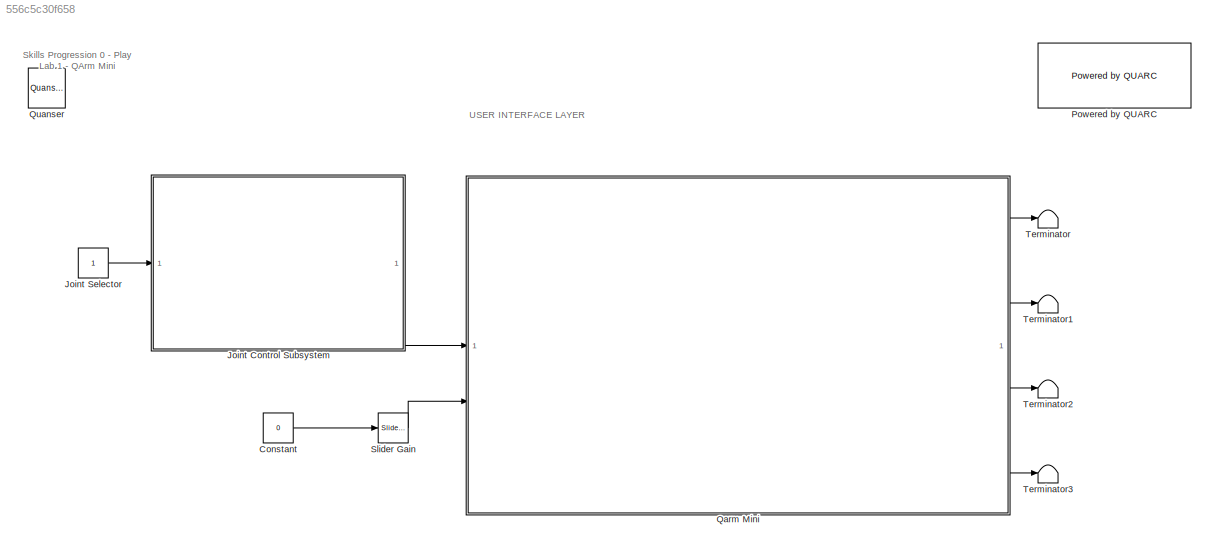
MODEL slx_556c5c30f658
KIND model
CONFIG AbsTol = auto
CONFIG EnableMultiTasking = on
CONFIG FixedStep = 1/10
CONFIG MaxStep = auto
CONFIG MinStep = auto
CONFIG RelTol = 1e-3
CONFIG SampleTimeConstraint = Unconstrained
CONFIG SolverName = ode1
CONFIG StartTime = 0.0
CONFIG StopTime = inf
BLOCK [Constant] Constant
  Value = 0
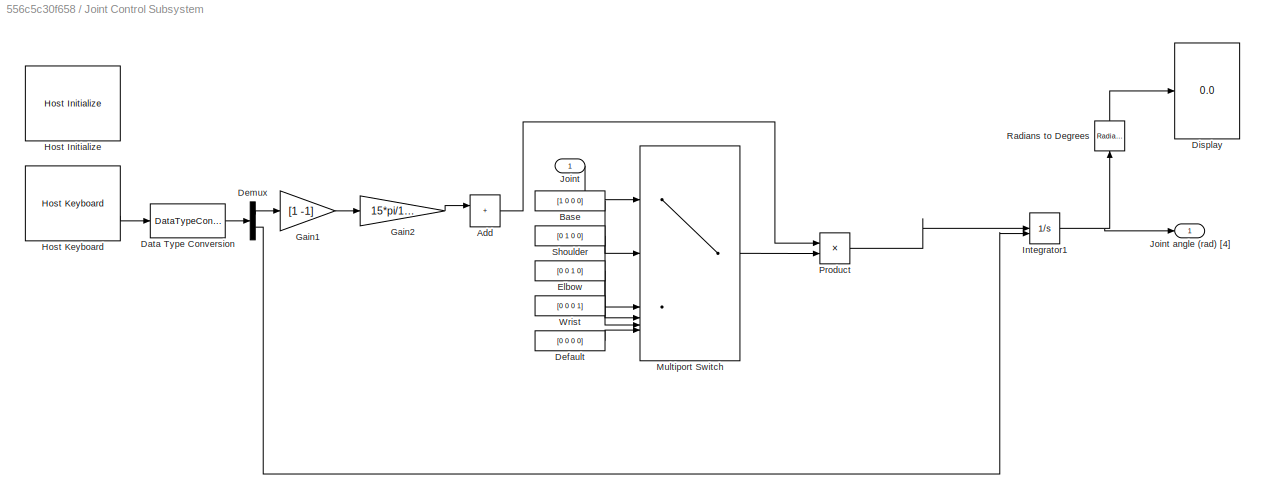
BLOCK [SubSystem] Joint Control Subsystem
BLOCK [Sum] Joint Control Subsystem/Add
  IconShape = rectangular
  Inputs = 1
  NameLocation = right
BLOCK [Constant] Joint Control Subsystem/Base
  Value = [1 0 0 0]
BLOCK [DataTypeConversion] Joint Control Subsystem/Data Type Conversion
  RndMeth = Floor
  SaturateOnIntegerOverflow = off
BLOCK [Constant] Joint Control Subsystem/Default
  Value = [0 0 0 0]
BLOCK [Demux] Joint Control Subsystem/Demux
  Outputs = 2
BLOCK [Display] Joint Control Subsystem/Display
  Decimation = 1
BLOCK [Constant] Joint Control Subsystem/Elbow
  Value = [0 0 1 0]
BLOCK [Gain] Joint Control Subsystem/Gain1
  Gain = [1 -1]
BLOCK [Gain] Joint Control Subsystem/Gain2
  Gain = 15*pi/180
BLOCK [Reference] Joint Control Subsystem/Host Initialize  REF=quarc_library/Devices/Peripherals/Host/Host Initialize
  SourceBlock = quarc_library/Devices/Peripherals/Host/Host Initialize
  SourceProductName = QUARC Targets
  SourceType = Host Initialize
BLOCK [Reference] Joint Control Subsystem/Host Keyboard  REF=quarc_library/Devices/Peripherals/Host/Host Keyboard
  SourceBlock = quarc_library/Devices/Peripherals/Host/Host Keyboard
  SourceProductName = QUARC Targets
  SourceType = Host Keyboard
BLOCK [Integrator] Joint Control Subsystem/Integrator1
  ExternalReset = rising
  LimitOutput = on
  LowerSaturationLimit = [-pi/2. -pi/2, -pi/4, -pi/2]
  UpperSaturationLimit = [5*pi/4, pi/2, pi/2, pi/4]
BLOCK [Inport] Joint Control Subsystem/Joint
BLOCK [Outport] Joint Control Subsystem/Joint angle (rad) [4]
BLOCK [MultiPortSwitch] Joint Control Subsystem/Multiport Switch
  DiagnosticForDefault = Warning
  InputSameDT = off
  Inputs = 5
  SaturateOnIntegerOverflow = off
BLOCK [Product] Joint Control Subsystem/Product
BLOCK [Reference] Joint Control Subsystem/Radians to Degrees  REF=simulink_extras/Transformations/Radians
to Degrees
  NameLocation = right
  SourceBlock = simulink_extras/Transformations/Radians\nto Degrees
  SourceType = RadiansToDegrees
BLOCK [Constant] Joint Control Subsystem/Shoulder
  Value = [0 1 0 0]
BLOCK [Constant] Joint Control Subsystem/Wrist
  Value = [0 0 0 1]
BLOCK [Constant] Joint Selector
BLOCK [Reference] Powered by QUARC  REF=quarc_library/Logos/Powered by QUARC
  SourceBlock = quarc_library/Logos/Powered by QUARC
  SourceProductName = QUARC Targets
  SourceType = Powered by QUARC
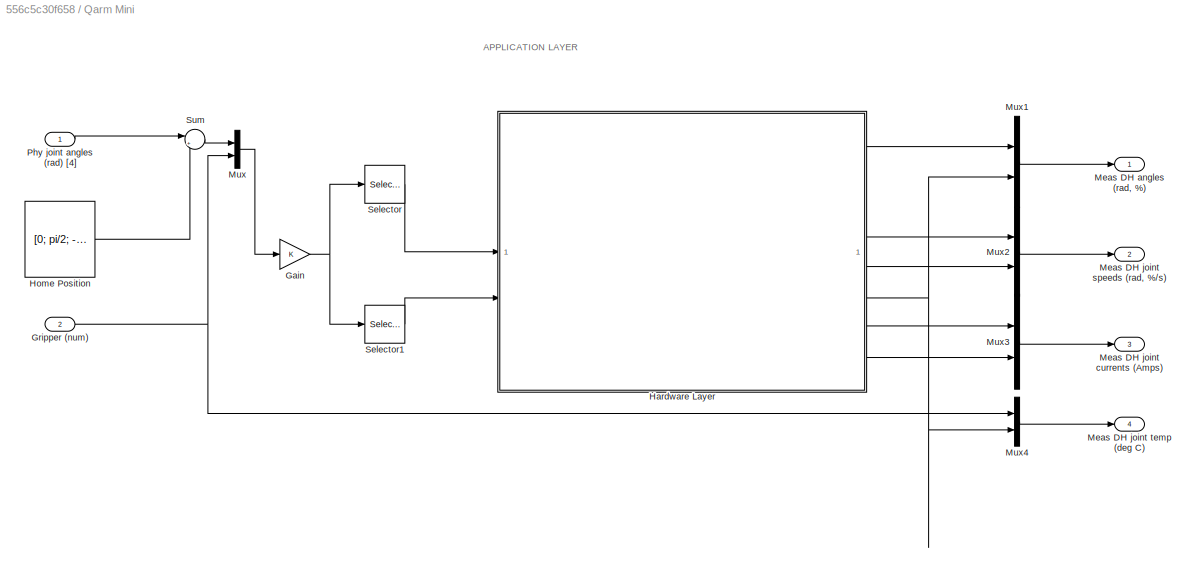
BLOCK [SubSystem] Qarm Mini
BLOCK [Gain] Qarm Mini/Gain
BLOCK [Inport] Qarm Mini/Gripper (num)
  Port = 2
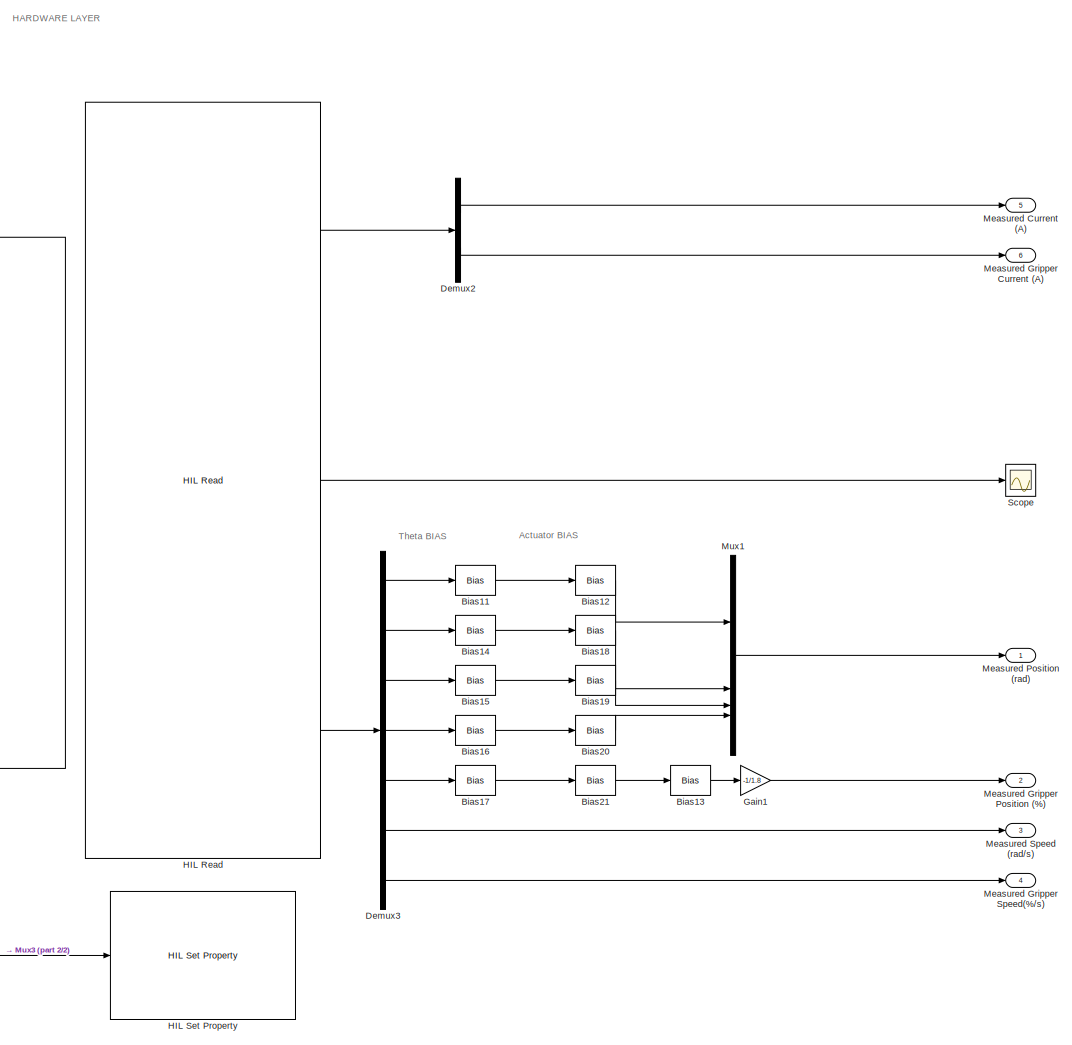
[diagram: Qarm Mini/Hardware Layer - part 1/2, right side, full height]
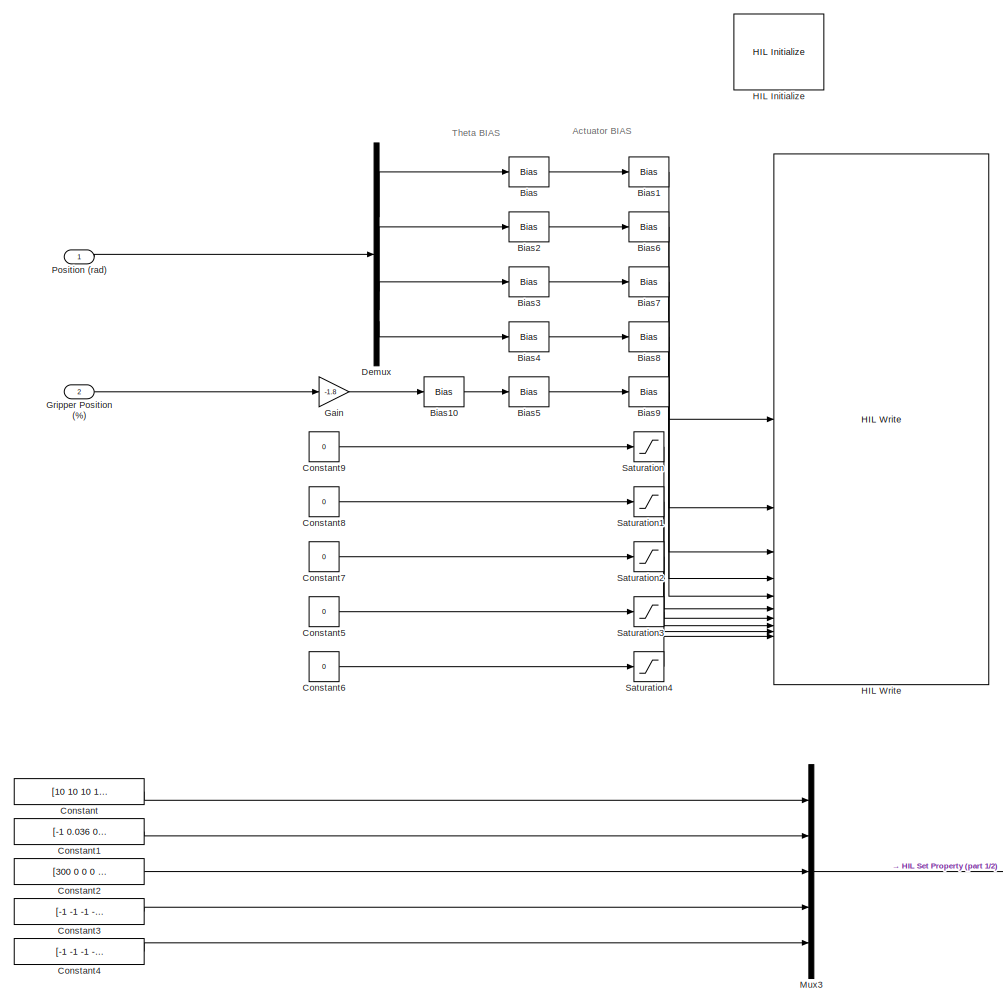
[diagram: Qarm Mini/Hardware Layer - part 2/2, left side, full height]
BLOCK [SubSystem] Qarm Mini/Hardware Layer
BLOCK [Bias] Qarm Mini/Hardware Layer/Bias
  SaturateOnIntegerOverflow = off
BLOCK [Bias] Qarm Mini/Hardware Layer/Bias1
  Bias = pi - ((67.5)*(pi/180)) - 0*((52.5)*(pi/180))
  SaturateOnIntegerOverflow = off
BLOCK [Bias] Qarm Mini/Hardware Layer/Bias10
  Bias = 0.9
  SaturateOnIntegerOverflow = off
BLOCK [Bias] Qarm Mini/Hardware Layer/Bias11
  SaturateOnIntegerOverflow = off
BLOCK [Bias] Qarm Mini/Hardware Layer/Bias12
  Bias = -(pi - ((67.5)*(pi/180)) - 0*((52.5)*(pi/180)))
  SaturateOnIntegerOverflow = off
BLOCK [Bias] Qarm Mini/Hardware Layer/Bias13
  Bias = -0.9
  SaturateOnIntegerOverflow = off
BLOCK [Bias] Qarm Mini/Hardware Layer/Bias14
  Bias = pi/2
  SaturateOnIntegerOverflow = off
BLOCK [Bias] Qarm Mini/Hardware Layer/Bias15
  Bias = -pi/2
  SaturateOnIntegerOverflow = off
BLOCK [Bias] Qarm Mini/Hardware Layer/Bias16
  Bias = pi/2
  SaturateOnIntegerOverflow = off
BLOCK [Bias] Qarm Mini/Hardware Layer/Bias17
  SaturateOnIntegerOverflow = off
BLOCK [Bias] Qarm Mini/Hardware Layer/Bias18
  Bias = -pi -  0.1834
  SaturateOnIntegerOverflow = off
BLOCK [Bias] Qarm Mini/Hardware Layer/Bias19
  Bias = -pi +  0.1834 - 0.07
  SaturateOnIntegerOverflow = off
BLOCK [Bias] Qarm Mini/Hardware Layer/Bias2
  Bias = -pi/2
  SaturateOnIntegerOverflow = off
BLOCK [Bias] Qarm Mini/Hardware Layer/Bias20
  Bias = -pi
  SaturateOnIntegerOverflow = off
BLOCK [Bias] Qarm Mini/Hardware Layer/Bias21
  Bias = -pi
  SaturateOnIntegerOverflow = off
BLOCK [Bias] Qarm Mini/Hardware Layer/Bias3
  Bias = pi/2
  SaturateOnIntegerOverflow = off
BLOCK [Bias] Qarm Mini/Hardware Layer/Bias4
  Bias = -pi/2
  SaturateOnIntegerOverflow = off
BLOCK [Bias] Qarm Mini/Hardware Layer/Bias5
  SaturateOnIntegerOverflow = off
BLOCK [Bias] Qarm Mini/Hardware Layer/Bias6
  Bias = pi + 0.1834
  SaturateOnIntegerOverflow = off
BLOCK [Bias] Qarm Mini/Hardware Layer/Bias7
  Bias = pi -  0.1834 + 0.07
  SaturateOnIntegerOverflow = off
BLOCK [Bias] Qarm Mini/Hardware Layer/Bias8
  Bias = pi
  SaturateOnIntegerOverflow = off
BLOCK [Bias] Qarm Mini/Hardware Layer/Bias9
  Bias = pi
  SaturateOnIntegerOverflow = off
BLOCK [Constant] Qarm Mini/Hardware Layer/Constant
  Value = [10 10 10 10 20]
BLOCK [Constant] Qarm Mini/Hardware Layer/Constant1
  Value = [-1 0.036 0.036 -1 -1]
BLOCK [Constant] Qarm Mini/Hardware Layer/Constant2
  Value = [300 0 0 0 0]
BLOCK [Constant] Qarm Mini/Hardware Layer/Constant3
  Value = [-1 -1 -1 -1 -1]
BLOCK [Constant] Qarm Mini/Hardware Layer/Constant4
  Value = [-1 -1 -1 -1 -1]
BLOCK [Constant] Qarm Mini/Hardware Layer/Constant5
  Value = 0
BLOCK [Constant] Qarm Mini/Hardware Layer/Constant6
  Value = 0
BLOCK [Constant] Qarm Mini/Hardware Layer/Constant7
  Value = 0
BLOCK [Constant] Qarm Mini/Hardware Layer/Constant8
  Value = 0
BLOCK [Constant] Qarm Mini/Hardware Layer/Constant9
  Value = 0
BLOCK [Demux] Qarm Mini/Hardware Layer/Demux
BLOCK [Demux] Qarm Mini/Hardware Layer/Demux2
  Outputs = [4 1]
BLOCK [Demux] Qarm Mini/Hardware Layer/Demux3
  Outputs = [1 1 1 1 1 4 1]
BLOCK [Gain] Qarm Mini/Hardware Layer/Gain
  Gain = -1.8
BLOCK [Gain] Qarm Mini/Hardware Layer/Gain1
  Gain = -1/1.8
BLOCK [Inport] Qarm Mini/Hardware Layer/Gripper Position (%)
  Port = 2
BLOCK [Reference] Qarm Mini/Hardware Layer/HIL Initialize  REF=quarc_library/Data Acquisition/Generic/Configuration/HIL Initialize
  AttributesFormatString = %<object_name> (%<board_type>-%<board_number>)
  SourceBlock = quarc_library/Data Acquisition/Generic/Configuration/HIL Initialize
  SourceProductName = QUARC Targets
  SourceType = HIL Initialize
  UserDataPersistent = on
BLOCK [Reference] Qarm Mini/Hardware Layer/HIL Read  REF=quarc_library/Data Acquisition/Generic/Immediate I//O/HIL Read
  AttributesFormatString = (%<object_name>)
  SourceBlock = quarc_library/Data Acquisition/Generic/Immediate I//O/HIL Read
  SourceProductName = QUARC Targets
  SourceType = HIL Read
  UserDataPersistent = on
BLOCK [Reference] Qarm Mini/Hardware Layer/HIL Set Property  REF=quarc_library/Data Acquisition/Generic/Configuration/HIL Set Property
  AttributesFormatString = (%<object_name>)
  SourceBlock = quarc_library/Data Acquisition/Generic/Configuration/HIL Set Property
  SourceProductName = QUARC Targets
  SourceType = HIL Set Property
  UserDataPersistent = on
BLOCK [Reference] Qarm Mini/Hardware Layer/HIL Write  REF=quarc_library/Data Acquisition/Generic/Immediate I//O/HIL Write
  AttributesFormatString = (%<object_name>)
  SourceBlock = quarc_library/Data Acquisition/Generic/Immediate I//O/HIL Write
  SourceProductName = QUARC Targets
  SourceType = HIL Write
  UserDataPersistent = on
BLOCK [Outport] Qarm Mini/Hardware Layer/Measured Current (A)
  Port = 5
BLOCK [Outport] Qarm Mini/Hardware Layer/Measured Gripper Current (A)
  Port = 6
BLOCK [Outport] Qarm Mini/Hardware Layer/Measured Gripper Position (%)
  Port = 2
BLOCK [Outport] Qarm Mini/Hardware Layer/Measured Gripper Speed(%//s)
  Port = 4
BLOCK [Outport] Qarm Mini/Hardware Layer/Measured Position (rad)
BLOCK [Outport] Qarm Mini/Hardware Layer/Measured Speed (rad//s)
  Port = 3
BLOCK [Mux] Qarm Mini/Hardware Layer/Mux1
  DisplayOption = bar
BLOCK [Mux] Qarm Mini/Hardware Layer/Mux3
  DisplayOption = bar
  Inputs = 5
BLOCK [Inport] Qarm Mini/Hardware Layer/Position (rad)
BLOCK [Saturate] Qarm Mini/Hardware Layer/Saturation
BLOCK [Saturate] Qarm Mini/Hardware Layer/Saturation1
BLOCK [Saturate] Qarm Mini/Hardware Layer/Saturation2
BLOCK [Saturate] Qarm Mini/Hardware Layer/Saturation3
BLOCK [Saturate] Qarm Mini/Hardware Layer/Saturation4
BLOCK [Scope] Qarm Mini/Hardware Layer/Scope
  Floating = off
  NumInputPorts = 1
  ScopeSpecificationString = Simulink.scopes.TimeScopeBlockCfg('CurrentConfiguration', extmgr.ConfigurationSet(extmgr.Configuration('Core','General UI',true),extmgr.Configuration('Core','Source UI',true),extmgr.Configuration('Sources','WiredSimulink',true),extmgr.Configuration('Visuals','Time Domain',true,'SerializedDisplays',{struct('MinYLimReal','-1.00000','MaxYLimReal','1.00000','YLabelReal','','MinYLimMag','0.00000','MaxY...<+1869ch>
BLOCK [Constant] Qarm Mini/Home Position
  Value = [0; pi/2; -pi/2; pi/2]
  VectorParams1D = off
BLOCK [Outport] Qarm Mini/Meas DH angles (rad, %)
BLOCK [Outport] Qarm Mini/Meas DH joint currents (Amps)
  Port = 3
BLOCK [Outport] Qarm Mini/Meas DH joint speeds (rad, %//s)
  Port = 2
BLOCK [Outport] Qarm Mini/Meas DH joint temp (deg C)
  Port = 4
BLOCK [Mux] Qarm Mini/Mux
  DisplayOption = bar
  Inputs = 2
BLOCK [Mux] Qarm Mini/Mux1
  DisplayOption = bar
  Inputs = 2
BLOCK [Mux] Qarm Mini/Mux2
  DisplayOption = bar
  Inputs = 2
BLOCK [Mux] Qarm Mini/Mux3
  DisplayOption = bar
  Inputs = 2
BLOCK [Mux] Qarm Mini/Mux4
  DisplayOption = bar
  Inputs = 2
BLOCK [Inport] Qarm Mini/Phy joint angles (rad) [4]
BLOCK [Selector] Qarm Mini/Selector
  IndexOptions = Index vector (dialog)
  Indices = 1:4
  InputPortWidth = 5
  OutputSizes = 1
BLOCK [Selector] Qarm Mini/Selector1
  IndexOptions = Index vector (dialog)
  Indices = 5
  InputPortWidth = 5
  OutputSizes = 1
BLOCK [Sum] Qarm Mini/Sum
  Inputs = |++
BLOCK [Reference] Quanser  REF=quarc_library/Logos/Quanser
  SourceBlock = quarc_library/Logos/Quanser
  SourceProductName = QUARC Targets
  SourceType = Powered by Quanser
BLOCK [Reference] Slider Gain  REF=simulink/Math
Operations/Slider
Gain
  NameLocation = right
  SourceBlock = simulink/Math\nOperations/Slider\nGain
  SourceType = Slider Gain
BLOCK [Terminator] Terminator
BLOCK [Terminator] Terminator1
BLOCK [Terminator] Terminator2
BLOCK [Terminator] Terminator3
ANNOTATION (root): Skills Progression 0 - Play Lab 1 - QArm Mini
ANNOTATION (root): USER INTERFACE LAYER
ANNOTATION Qarm Mini: APPLICATION LAYER
ANNOTATION Qarm Mini/Hardware Layer: Actuator BIAS
ANNOTATION Qarm Mini/Hardware Layer: HARDWARE LAYER
ANNOTATION Qarm Mini/Hardware Layer: Theta BIAS
LINE Constant:1 -> Slider Gain:1
LINE Joint Control Subsystem/Add:1 -> Joint Control Subsystem/Product:1
LINE Joint Control Subsystem/Base:1 -> Joint Control Subsystem/Multiport Switch:2
LINE Joint Control Subsystem/Data Type Conversion:1 -> Joint Control Subsystem/Demux:1
LINE Joint Control Subsystem/Default:1 -> Joint Control Subsystem/Multiport Switch:6
LINE Joint Control Subsystem/Demux:1 -> Joint Control Subsystem/Gain1:1
LINE Joint Control Subsystem/Demux:2 -> Joint Control Subsystem/Integrator1:2
LINE Joint Control Subsystem/Elbow:1 -> Joint Control Subsystem/Multiport Switch:4
LINE Joint Control Subsystem/Gain1:1 -> Joint Control Subsystem/Gain2:1
LINE Joint Control Subsystem/Gain2:1 -> Joint Control Subsystem/Add:1
LINE Joint Control Subsystem/Host Keyboard:2 -> Joint Control Subsystem/Data Type Conversion:1
NET Joint Control Subsystem/Integrator1:1 -> Joint Control Subsystem/Joint angle (rad) [4]:1, Joint Control Subsystem/Radians to Degrees:1
LINE Joint Control Subsystem/Joint:1 -> Joint Control Subsystem/Multiport Switch:1
LINE Joint Control Subsystem/Multiport Switch:1 -> Joint Control Subsystem/Product:2
LINE Joint Control Subsystem/Product:1 -> Joint Control Subsystem/Integrator1:1
LINE Joint Control Subsystem/Radians to Degrees:1 -> Joint Control Subsystem/Display:1
LINE Joint Control Subsystem/Shoulder:1 -> Joint Control Subsystem/Multiport Switch:3
LINE Joint Control Subsystem/Wrist:1 -> Joint Control Subsystem/Multiport Switch:5
LINE Joint Control Subsystem:1 -> Qarm Mini:1
LINE Joint Selector:1 -> Joint Control Subsystem:1
NET Qarm Mini/Gain:1 -> Qarm Mini/Selector1:1, Qarm Mini/Selector:1
NET Qarm Mini/Gripper (num):1 -> Qarm Mini/Mux4:1, Qarm Mini/Mux:2
LINE Qarm Mini/Hardware Layer/Bias10:1 -> Qarm Mini/Hardware Layer/Bias5:1
LINE Qarm Mini/Hardware Layer/Bias11:1 -> Qarm Mini/Hardware Layer/Bias12:1
LINE Qarm Mini/Hardware Layer/Bias12:1 -> Qarm Mini/Hardware Layer/Mux1:1
LINE Qarm Mini/Hardware Layer/Bias13:1 -> Qarm Mini/Hardware Layer/Gain1:1
LINE Qarm Mini/Hardware Layer/Bias14:1 -> Qarm Mini/Hardware Layer/Bias18:1
LINE Qarm Mini/Hardware Layer/Bias15:1 -> Qarm Mini/Hardware Layer/Bias19:1
LINE Qarm Mini/Hardware Layer/Bias16:1 -> Qarm Mini/Hardware Layer/Bias20:1
LINE Qarm Mini/Hardware Layer/Bias17:1 -> Qarm Mini/Hardware Layer/Bias21:1
LINE Qarm Mini/Hardware Layer/Bias18:1 -> Qarm Mini/Hardware Layer/Mux1:2
LINE Qarm Mini/Hardware Layer/Bias19:1 -> Qarm Mini/Hardware Layer/Mux1:3
LINE Qarm Mini/Hardware Layer/Bias1:1 -> Qarm Mini/Hardware Layer/HIL Write:1
LINE Qarm Mini/Hardware Layer/Bias20:1 -> Qarm Mini/Hardware Layer/Mux1:4
LINE Qarm Mini/Hardware Layer/Bias21:1 -> Qarm Mini/Hardware Layer/Bias13:1
LINE Qarm Mini/Hardware Layer/Bias2:1 -> Qarm Mini/Hardware Layer/Bias6:1
LINE Qarm Mini/Hardware Layer/Bias3:1 -> Qarm Mini/Hardware Layer/Bias7:1
LINE Qarm Mini/Hardware Layer/Bias4:1 -> Qarm Mini/Hardware Layer/Bias8:1
LINE Qarm Mini/Hardware Layer/Bias5:1 -> Qarm Mini/Hardware Layer/Bias9:1
LINE Qarm Mini/Hardware Layer/Bias6:1 -> Qarm Mini/Hardware Layer/HIL Write:2
LINE Qarm Mini/Hardware Layer/Bias7:1 -> Qarm Mini/Hardware Layer/HIL Write:3
LINE Qarm Mini/Hardware Layer/Bias8:1 -> Qarm Mini/Hardware Layer/HIL Write:4
LINE Qarm Mini/Hardware Layer/Bias9:1 -> Qarm Mini/Hardware Layer/HIL Write:5
LINE Qarm Mini/Hardware Layer/Bias:1 -> Qarm Mini/Hardware Layer/Bias1:1
LINE Qarm Mini/Hardware Layer/Constant1:1 -> Qarm Mini/Hardware Layer/Mux3:2
LINE Qarm Mini/Hardware Layer/Constant2:1 -> Qarm Mini/Hardware Layer/Mux3:3
LINE Qarm Mini/Hardware Layer/Constant3:1 -> Qarm Mini/Hardware Layer/Mux3:4
LINE Qarm Mini/Hardware Layer/Constant4:1 -> Qarm Mini/Hardware Layer/Mux3:5
LINE Qarm Mini/Hardware Layer/Constant5:1 -> Qarm Mini/Hardware Layer/Saturation3:1
LINE Qarm Mini/Hardware Layer/Constant6:1 -> Qarm Mini/Hardware Layer/Saturation4:1
LINE Qarm Mini/Hardware Layer/Constant7:1 -> Qarm Mini/Hardware Layer/Saturation2:1
LINE Qarm Mini/Hardware Layer/Constant8:1 -> Qarm Mini/Hardware Layer/Saturation1:1
LINE Qarm Mini/Hardware Layer/Constant9:1 -> Qarm Mini/Hardware Layer/Saturation:1
LINE Qarm Mini/Hardware Layer/Constant:1 -> Qarm Mini/Hardware Layer/Mux3:1
LINE Qarm Mini/Hardware Layer/Demux2:1 -> Qarm Mini/Hardware Layer/Measured Current (A):1
LINE Qarm Mini/Hardware Layer/Demux2:2 -> Qarm Mini/Hardware Layer/Measured Gripper Current (A):1
LINE Qarm Mini/Hardware Layer/Demux3:1 -> Qarm Mini/Hardware Layer/Bias11:1
LINE Qarm Mini/Hardware Layer/Demux3:2 -> Qarm Mini/Hardware Layer/Bias14:1
LINE Qarm Mini/Hardware Layer/Demux3:3 -> Qarm Mini/Hardware Layer/Bias15:1
LINE Qarm Mini/Hardware Layer/Demux3:4 -> Qarm Mini/Hardware Layer/Bias16:1
LINE Qarm Mini/Hardware Layer/Demux3:5 -> Qarm Mini/Hardware Layer/Bias17:1
LINE Qarm Mini/Hardware Layer/Demux3:6 -> Qarm Mini/Hardware Layer/Measured Speed (rad//s):1
LINE Qarm Mini/Hardware Layer/Demux3:7 -> Qarm Mini/Hardware Layer/Measured Gripper Speed(%//s):1
LINE Qarm Mini/Hardware Layer/Demux:1 -> Qarm Mini/Hardware Layer/Bias:1
LINE Qarm Mini/Hardware Layer/Demux:2 -> Qarm Mini/Hardware Layer/Bias2:1
LINE Qarm Mini/Hardware Layer/Demux:3 -> Qarm Mini/Hardware Layer/Bias3:1
LINE Qarm Mini/Hardware Layer/Demux:4 -> Qarm Mini/Hardware Layer/Bias4:1
LINE Qarm Mini/Hardware Layer/Gain1:1 -> Qarm Mini/Hardware Layer/Measured Gripper Position (%):1
LINE Qarm Mini/Hardware Layer/Gain:1 -> Qarm Mini/Hardware Layer/Bias10:1
LINE Qarm Mini/Hardware Layer/Gripper Position (%):1 -> Qarm Mini/Hardware Layer/Gain:1
LINE Qarm Mini/Hardware Layer/HIL Read:1 -> Qarm Mini/Hardware Layer/Demux2:1
LINE Qarm Mini/Hardware Layer/HIL Read:2 -> Qarm Mini/Hardware Layer/Scope:1
LINE Qarm Mini/Hardware Layer/HIL Read:3 -> Qarm Mini/Hardware Layer/Demux3:1
LINE Qarm Mini/Hardware Layer/Mux1:1 -> Qarm Mini/Hardware Layer/Measured Position (rad):1
LINE Qarm Mini/Hardware Layer/Mux3:1 -> Qarm Mini/Hardware Layer/HIL Set Property:1
LINE Qarm Mini/Hardware Layer/Position (rad):1 -> Qarm Mini/Hardware Layer/Demux:1
LINE Qarm Mini/Hardware Layer/Saturation1:1 -> Qarm Mini/Hardware Layer/HIL Write:7
LINE Qarm Mini/Hardware Layer/Saturation2:1 -> Qarm Mini/Hardware Layer/HIL Write:8
LINE Qarm Mini/Hardware Layer/Saturation3:1 -> Qarm Mini/Hardware Layer/HIL Write:9
LINE Qarm Mini/Hardware Layer/Saturation4:1 -> Qarm Mini/Hardware Layer/HIL Write:10
LINE Qarm Mini/Hardware Layer/Saturation:1 -> Qarm Mini/Hardware Layer/HIL Write:6
LINE Qarm Mini/Hardware Layer:1 -> Qarm Mini/Mux1:1
NET Qarm Mini/Hardware Layer:2 -> Qarm Mini/Mux1:2, Qarm Mini/Mux4:2
LINE Qarm Mini/Hardware Layer:3 -> Qarm Mini/Mux2:1
LINE Qarm Mini/Hardware Layer:4 -> Qarm Mini/Mux2:2
LINE Qarm Mini/Hardware Layer:5 -> Qarm Mini/Mux3:1
LINE Qarm Mini/Hardware Layer:6 -> Qarm Mini/Mux3:2
LINE Qarm Mini/Home Position:1 -> Qarm Mini/Sum:2
LINE Qarm Mini/Mux1:1 -> Qarm Mini/Meas DH angles (rad, %):1
LINE Qarm Mini/Mux2:1 -> Qarm Mini/Meas DH joint speeds (rad, %//s):1
LINE Qarm Mini/Mux3:1 -> Qarm Mini/Meas DH joint currents (Amps):1
LINE Qarm Mini/Mux4:1 -> Qarm Mini/Meas DH joint temp (deg C):1
LINE Qarm Mini/Mux:1 -> Qarm Mini/Gain:1
LINE Qarm Mini/Phy joint angles (rad) [4]:1 -> Qarm Mini/Sum:1
LINE Qarm Mini/Selector1:1 -> Qarm Mini/Hardware Layer:2
LINE Qarm Mini/Selector:1 -> Qarm Mini/Hardware Layer:1
LINE Qarm Mini/Sum:1 -> Qarm Mini/Mux:1
LINE Qarm Mini:1 -> Terminator:1
LINE Qarm Mini:2 -> Terminator1:1
LINE Qarm Mini:3 -> Terminator2:1
LINE Qarm Mini:4 -> Terminator3:1
LINE Slider Gain:1 -> Qarm Mini:2
note: NET lines group one-source signal fan-out (src -> all destinations, sorted); 1:1 wires keep LINE
